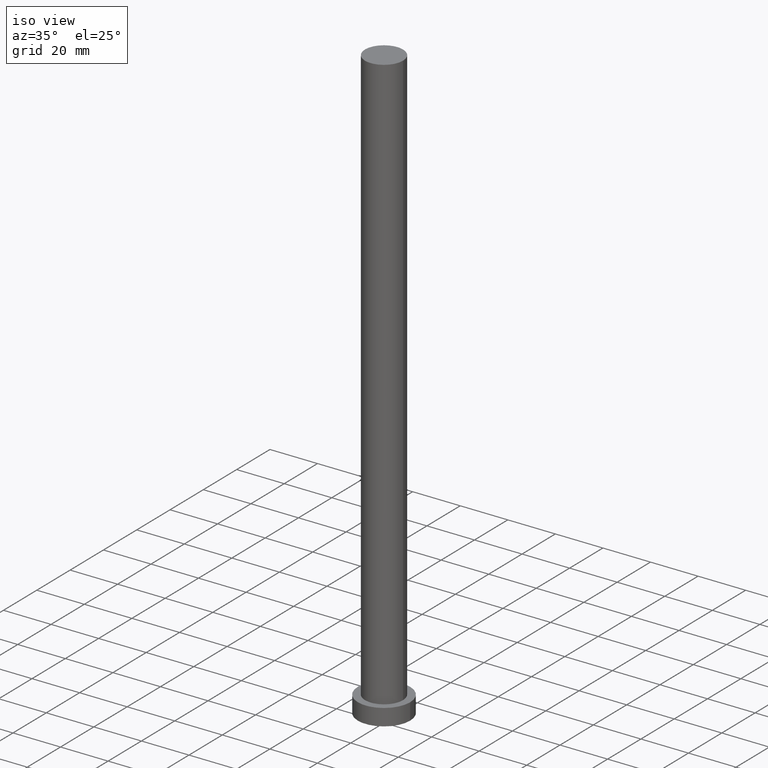
[diagram: clean part render]
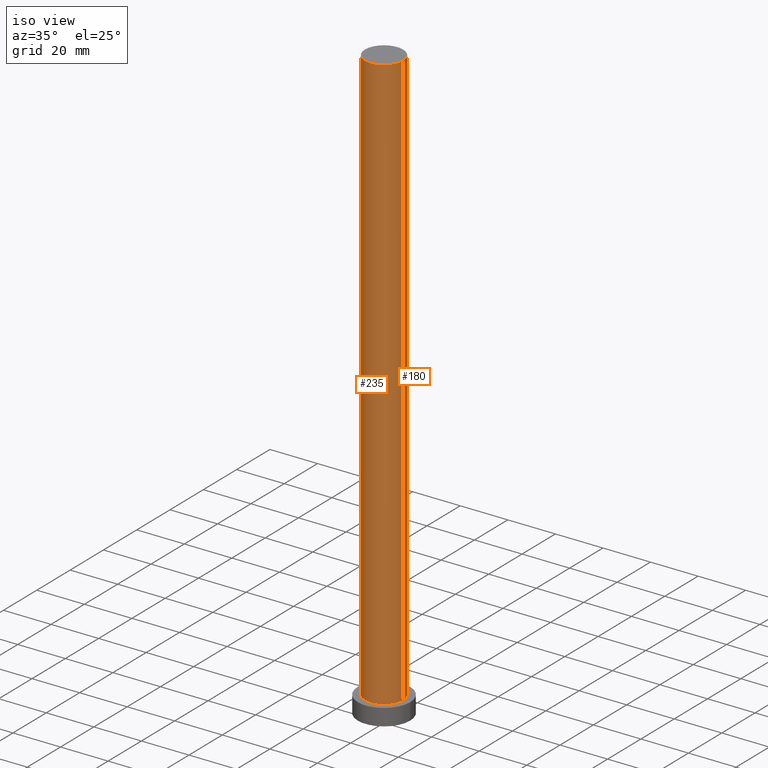
[diagram: same view with one multi-face feature highlighted, each face labeled with its STEP entity id]
A machine part, iso view. The highlighted faces form ONE feature: a constant-radius fillet chain: 2 tangent blend faces with common blend radius 8 mm. The faces share edges in the B-rep.
Their STEP definitions:
[1] entity #235 (Cylinder):
#1 = AXIS2_PLACEMENT_3D ( 'NONE', #224, #156, #229 ) ;
#5 = CARTESIAN_POINT ( 'NONE',  ( -8.000000000000000000, 0.000000000000000000, 250.0000000000000000 ) ) ;
#8 = DIRECTION ( 'NONE',  ( 0.000000000000000000, 0.000000000000000000, 1.000000000000000000 ) ) ;
#9 = CIRCLE ( 'NONE', #163, 8.000000000000000000 ) ;
#25 = EDGE_LOOP ( 'NONE', ( #38, #58, #162, #101 ) ) ;
#27 = CARTESIAN_POINT ( 'NONE',  ( 0.000000000000000000, 0.000000000000000000, 250.0000000000000000 ) ) ;
#28 = EDGE_CURVE ( 'NONE', #105, #124, #9, .T. ) ;
#38 = ORIENTED_EDGE ( 'NONE', *, *, #96, .F. ) ;
#41 = VERTEX_POINT ( 'NONE', #178 ) ;
#45 = CARTESIAN_POINT ( 'NONE',  ( -8.000000000000000000, 0.000000000000000000, 250.0000000000000000 ) ) ;
#58 = ORIENTED_EDGE ( 'NONE', *, *, #28, .F. ) ;
#92 = VECTOR ( 'NONE', #153, 1000.000000000000000 ) ;
#96 = EDGE_CURVE ( 'NONE', #124, #41, #109, .T. ) ;
#100 = VERTEX_POINT ( 'NONE', #181 ) ;
#101 = ORIENTED_EDGE ( 'NONE', *, *, #208, .T. ) ;
#105 = VERTEX_POINT ( 'NONE', #5 ) ;
#107 = DIRECTION ( 'NONE',  ( 1.000000000000000000, 0.000000000000000000, 0.000000000000000000 ) ) ;
#109 = LINE ( 'NONE', #114, #202 ) ;
#114 = CARTESIAN_POINT ( 'NONE',  ( 8.000000000000000000, 9.797174393178825657E-16, 250.0000000000000000 ) ) ;
#115 = DIRECTION ( 'NONE',  ( 1.000000000000000000, 0.000000000000000000, 0.000000000000000000 ) ) ;
#124 = VERTEX_POINT ( 'NONE', #167 ) ;
#130 = AXIS2_PLACEMENT_3D ( 'NONE', #155, #135, #115 ) ;
#135 = DIRECTION ( 'NONE',  ( 0.000000000000000000, 0.000000000000000000, 1.000000000000000000 ) ) ;
#142 = EDGE_CURVE ( 'NONE', #105, #100, #216, .T. ) ;
#153 = DIRECTION ( 'NONE',  ( -0.000000000000000000, -0.000000000000000000, -1.000000000000000000 ) ) ;
#154 = CYLINDRICAL_SURFACE ( 'NONE', #1, 8.000000000000000000 ) ;
#155 = CARTESIAN_POINT ( 'NONE',  ( 0.000000000000000000, 0.000000000000000000, 7.000000000000000000 ) ) ;
#156 = DIRECTION ( 'NONE',  ( -0.000000000000000000, -0.000000000000000000, -1.000000000000000000 ) ) ;
#159 = CIRCLE ( 'NONE', #130, 8.000000000000000000 ) ;
#162 = ORIENTED_EDGE ( 'NONE', *, *, #142, .T. ) ;
#163 = AXIS2_PLACEMENT_3D ( 'NONE', #27, #8, #107 ) ;
#167 = CARTESIAN_POINT ( 'NONE',  ( 8.000000000000000000, 9.797174393178825657E-16, 250.0000000000000000 ) ) ;
#169 = DIRECTION ( 'NONE',  ( -0.000000000000000000, -0.000000000000000000, -1.000000000000000000 ) ) ;
#178 = CARTESIAN_POINT ( 'NONE',  ( 8.000000000000000000, 9.797174393178825657E-16, 7.000000000000000000 ) ) ;
#181 = CARTESIAN_POINT ( 'NONE',  ( -8.000000000000000000, 0.000000000000000000, 7.000000000000000000 ) ) ;
#202 = VECTOR ( 'NONE', #169, 1000.000000000000000 ) ;
#208 = EDGE_CURVE ( 'NONE', #100, #41, #159, .T. ) ;
#216 = LINE ( 'NONE', #45, #92 ) ;
#224 = CARTESIAN_POINT ( 'NONE',  ( 0.000000000000000000, 0.000000000000000000, 250.0000000000000000 ) ) ;
#229 = DIRECTION ( 'NONE',  ( -1.000000000000000000, 0.000000000000000000, 0.000000000000000000 ) ) ;
#235 = ADVANCED_FACE ( 'NONE', ( #245 ), #154, .T. ) ;
#245 = FACE_OUTER_BOUND ( 'NONE', #25, .T. ) ;
[2] entity #180 (Cylinder):
#3 = ORIENTED_EDGE ( 'NONE', *, *, #142, .F. ) ;
#5 = CARTESIAN_POINT ( 'NONE',  ( -8.000000000000000000, 0.000000000000000000, 250.0000000000000000 ) ) ;
#10 = CARTESIAN_POINT ( 'NONE',  ( 0.000000000000000000, 0.000000000000000000, 7.000000000000000000 ) ) ;
#12 = AXIS2_PLACEMENT_3D ( 'NONE', #73, #13, #93 ) ;
#13 = DIRECTION ( 'NONE',  ( -0.000000000000000000, -0.000000000000000000, -1.000000000000000000 ) ) ;
#41 = VERTEX_POINT ( 'NONE', #178 ) ;
#45 = CARTESIAN_POINT ( 'NONE',  ( -8.000000000000000000, 0.000000000000000000, 250.0000000000000000 ) ) ;
#46 = CARTESIAN_POINT ( 'NONE',  ( 0.000000000000000000, 0.000000000000000000, 250.0000000000000000 ) ) ;
#51 = EDGE_CURVE ( 'NONE', #41, #100, #59, .T. ) ;
#59 = CIRCLE ( 'NONE', #193, 8.000000000000000000 ) ;
#73 = CARTESIAN_POINT ( 'NONE',  ( 0.000000000000000000, 0.000000000000000000, 250.0000000000000000 ) ) ;
#80 = EDGE_CURVE ( 'NONE', #124, #105, #176, .T. ) ;
#92 = VECTOR ( 'NONE', #153, 1000.000000000000000 ) ;
#93 = DIRECTION ( 'NONE',  ( -1.000000000000000000, 0.000000000000000000, 0.000000000000000000 ) ) ;
#96 = EDGE_CURVE ( 'NONE', #124, #41, #109, .T. ) ;
#99 = EDGE_LOOP ( 'NONE', ( #175, #236, #158, #3 ) ) ;
#100 = VERTEX_POINT ( 'NONE', #181 ) ;
#105 = VERTEX_POINT ( 'NONE', #5 ) ;
#109 = LINE ( 'NONE', #114, #202 ) ;
#111 = DIRECTION ( 'NONE',  ( 0.000000000000000000, 0.000000000000000000, 1.000000000000000000 ) ) ;
#114 = CARTESIAN_POINT ( 'NONE',  ( 8.000000000000000000, 9.797174393178825657E-16, 250.0000000000000000 ) ) ;
#124 = VERTEX_POINT ( 'NONE', #167 ) ;
#142 = EDGE_CURVE ( 'NONE', #105, #100, #216, .T. ) ;
#148 = CYLINDRICAL_SURFACE ( 'NONE', #12, 8.000000000000000000 ) ;
#149 = DIRECTION ( 'NONE',  ( 1.000000000000000000, 0.000000000000000000, 0.000000000000000000 ) ) ;
#153 = DIRECTION ( 'NONE',  ( -0.000000000000000000, -0.000000000000000000, -1.000000000000000000 ) ) ;
#158 = ORIENTED_EDGE ( 'NONE', *, *, #51, .T. ) ;
#164 = DIRECTION ( 'NONE',  ( 0.000000000000000000, 0.000000000000000000, 1.000000000000000000 ) ) ;
#167 = CARTESIAN_POINT ( 'NONE',  ( 8.000000000000000000, 9.797174393178825657E-16, 250.0000000000000000 ) ) ;
#169 = DIRECTION ( 'NONE',  ( -0.000000000000000000, -0.000000000000000000, -1.000000000000000000 ) ) ;
#175 = ORIENTED_EDGE ( 'NONE', *, *, #80, .F. ) ;
#176 = CIRCLE ( 'NONE', #198, 8.000000000000000000 ) ;
#178 = CARTESIAN_POINT ( 'NONE',  ( 8.000000000000000000, 9.797174393178825657E-16, 7.000000000000000000 ) ) ;
#180 = ADVANCED_FACE ( 'NONE', ( #194 ), #148, .T. ) ;
#181 = CARTESIAN_POINT ( 'NONE',  ( -8.000000000000000000, 0.000000000000000000, 7.000000000000000000 ) ) ;
#193 = AXIS2_PLACEMENT_3D ( 'NONE', #10, #164, #217 ) ;
#194 = FACE_OUTER_BOUND ( 'NONE', #99, .T. ) ;
#198 = AXIS2_PLACEMENT_3D ( 'NONE', #46, #111, #149 ) ;
#202 = VECTOR ( 'NONE', #169, 1000.000000000000000 ) ;
#216 = LINE ( 'NONE', #45, #92 ) ;
#217 = DIRECTION ( 'NONE',  ( 1.000000000000000000, 0.000000000000000000, 0.000000000000000000 ) ) ;
#236 = ORIENTED_EDGE ( 'NONE', *, *, #96, .T. ) ;